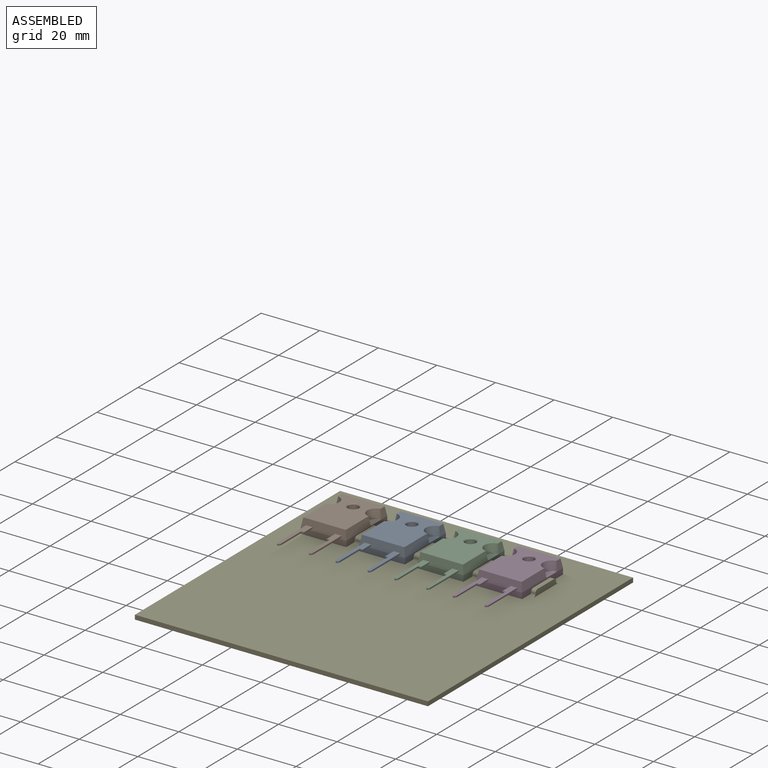
[diagram: assembled view]
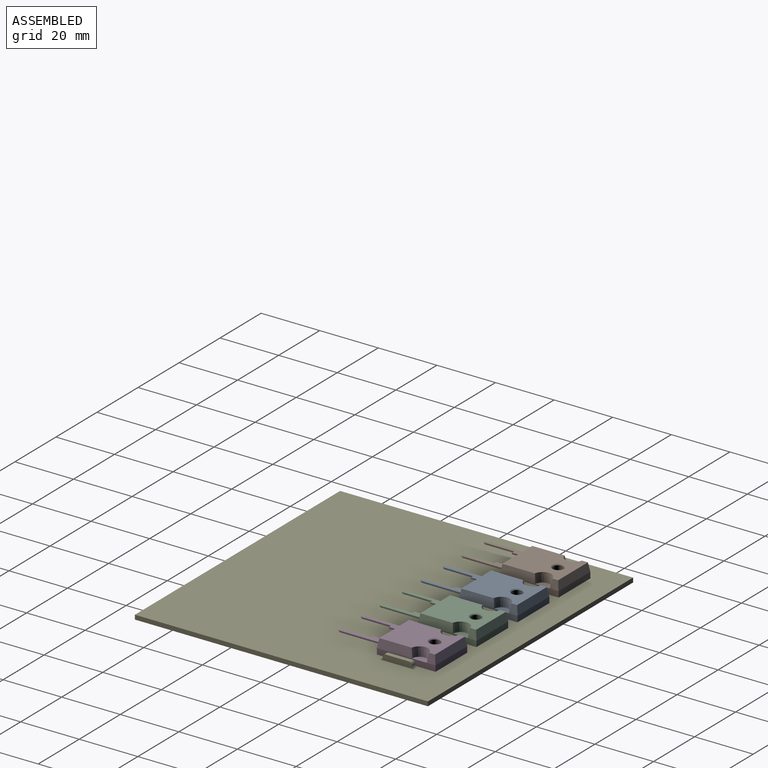
[diagram: assembled view, second angle]
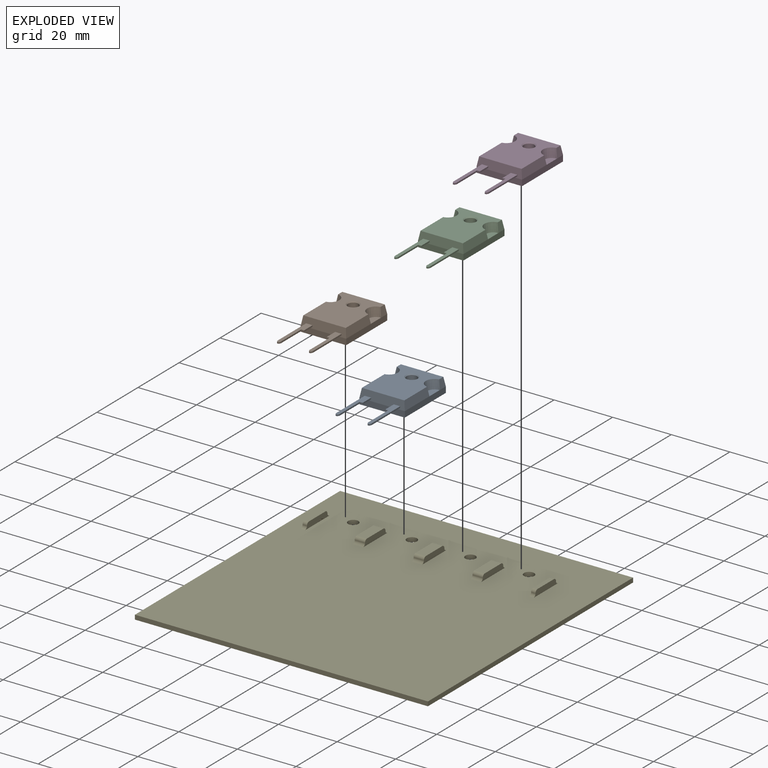
[diagram: exploded view]
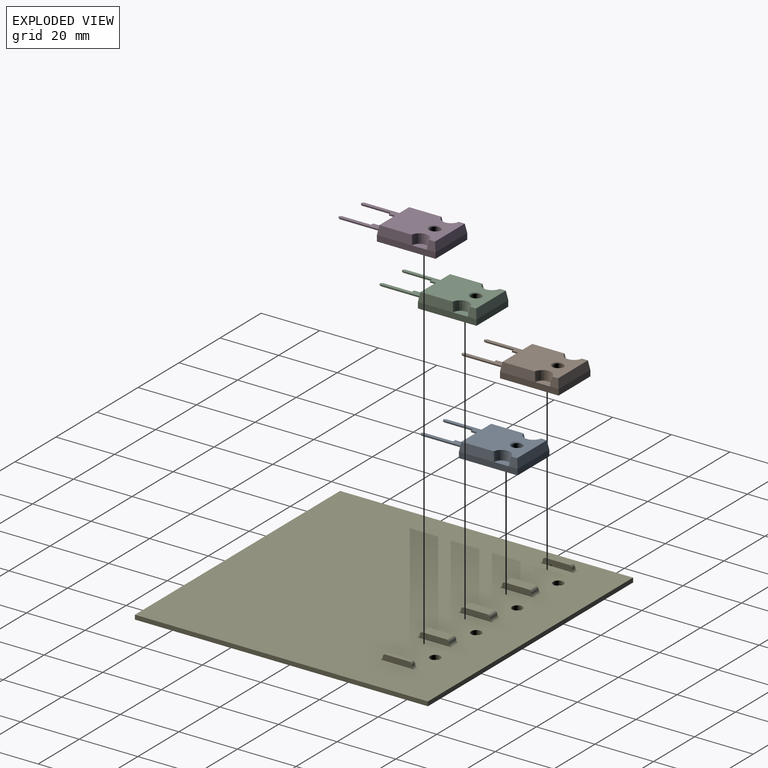
[diagram: exploded view, second angle]
ASSEMBLY  parts=5 mates=4
PART A: 36 faces, bbox 15.5x34.5x5 mm
  f0: plane 4.17x0.5mm, normal (1,0,0), area 2.1mm2, adj f3,f4,f23,f31
  f1: plane 14.06x0.5mm, normal (-1,0,0), area 7mm2, adj f3,f4,f23,f34
  f2: plane 0.5x0.5mm, normal (0,-1,0), area 0.3mm2, adj f3,f4,f33,f34
  f3: plane 14.58x2.2mm, normal (0,0,-1), area 21.4mm2, adj f0,f1,f2,f23,f31,f32,f33,f34
  f4: plane 14.67x2.2mm, normal (0,0,1), area 21.6mm2, adj f0,f1,f2,f23,f31,f32,f33,f34
  f5: plane 4.17x0.5mm, normal (-1,0,0), area 2.1mm2, adj f8,f16,f23,f27
  f6: plane 14.06x0.5mm, normal (1,0,0), area 7mm2, adj f8,f16,f23,f30
  f7: plane 0.5x0.5mm, normal (0,-1,0), area 0.3mm2, adj f8,f16,f28,f30
  f8: plane 14.67x2.2mm, normal (0,0,1), area 21.6mm2, adj f5,f6,f7,f23,f27,f28,f29,f30
  f9: plane 20x2mm, normal (1,0,0), area 40mm2, adj f11,f12,f15,f18,f24,f25
  f10: plane 19x14.5mm, normal (0,0,1), area 239.3mm2, adj f19,f20,f21,f22,f23,f24,f25,f26
  f11: plane 15.5x2mm, normal (0,-1,0), area 31mm2, adj f9,f13,f15,f23
  f12: plane 15.5x2mm, normal (0,1,0), area 31mm2, adj f9,f13,f15,f22
  f13: plane 20x2mm, normal (-1,0,0), area 40mm2, adj f11,f12,f15,f17,f20,f21
  f14: cylinder r=1.8mm len=4.7mm, axis (0,0,-1), area 53.2mm2, adj f15,f35
  f15: plane 20x15.5mm, normal (0,0,-1), area 299.8mm2, adj f9,f11,f12,f13,f14
  f16: plane 14.58x2.2mm, normal (0,0,-1), area 21.4mm2, adj f5,f6,f7,f23,f27,f28,f29,f30
  f17: plane 5x2.5mm, normal (0,0,1), area 9.8mm2, adj f13,f19
  f18: plane 5x2.5mm, normal (0,0,1), area 9.8mm2, adj f9,f26
  f19: cone r=3mm half-angle=9.5deg, axis (0,0,1), area 24.8mm2, adj f10,f17,f20,f21
  f20: plane 3x3mm, normal (-0.99,0,0.16), area 7.6mm2, adj f10,f13,f19,f22
  f21: plane 12x3mm, normal (-0.99,0,0.16), area 35mm2, adj f10,f13,f19,f23
  f22: plane 15.5x3mm, normal (0,0.99,0.16), area 45.6mm2, adj f10,f12,f20,f24
  f23: plane 15.5x3mm, normal (0,-0.99,0.16), area 43.4mm2, adj f0,f1,f3,f4,f5,f6,f8,f10
  f24: plane 3x3mm, normal (0.99,0,0.16), area 7.6mm2, adj f9,f10,f22,f26
  f25: plane 12x3mm, normal (0.99,0,0.16), area 35mm2, adj f9,f10,f23,f26
  f26: cone r=2.5mm half-angle=9.5deg, axis (0,0,1), area 24.8mm2, adj f10,f18,f24,f25
  f27: plane 1x0.5mm, normal (0,-1,0), area 0.5mm2, adj f5,f8,f16,f29
  f28: plane 0.61x0.5mm, normal (-0.87,-0.5,0), area 0.4mm2, adj f7,f8,f16,f29
  f29: plane 9.89x0.5mm, normal (-1,0,0), area 4.9mm2, adj f8,f16,f27,f28
  f30: plane 0.61x0.5mm, normal (0.87,-0.5,0), area 0.4mm2, adj f6,f7,f8,f16
  f31: plane 1x0.5mm, normal (0,-1,0), area 0.5mm2, adj f0,f3,f4,f32
  f32: plane 9.89x0.5mm, normal (1,0,0), area 4.9mm2, adj f3,f4,f31,f33
  f33: plane 0.61x0.5mm, normal (0.87,-0.5,0), area 0.4mm2, adj f2,f3,f4,f32
  f34: plane 0.61x0.5mm, normal (-0.87,-0.5,0), area 0.4mm2, adj f1,f2,f3,f4
  f35: cone r=1.8mm half-angle=45deg, axis (0,0,1), area 5.2mm2, adj f10,f14
PART B: same geometry as A
PART C: same geometry as A
PART D: same geometry as A
PART E: 52 faces, bbox 100x100x3.5 mm
  f0: plane 100x100mm, normal (0,0,-1), area 9949.5mm2, adj f3,f4,f5,f6,f7,f8,f9,f10
  f1: plane 12x2mm, normal (1,0,0), area 17.4mm2, adj f2,f12,f41,f42,f43,f44,f47,f48
  f2: plane 100x100mm, normal (0,0,1), area 9799.5mm2, adj f1,f3,f4,f5,f6,f7,f8,f9
  f3: plane 100x1.5mm, normal (1,0,0), area 150mm2, adj f0,f2,f4,f9
  f4: plane 100x1.5mm, normal (0,1,0), area 150mm2, adj f0,f2,f3,f5
  f5: plane 100x1.5mm, normal (-1,0,0), area 150mm2, adj f0,f2,f4,f9
  f6: cylinder r=1.75mm len=3.5mm, axis (0,0,-1), area 16.5mm2, adj f0,f2
  f7: cylinder r=1.75mm len=3.5mm, axis (0,0,-1), area 16.5mm2, adj f0,f2
  f8: cylinder r=1.75mm len=3.5mm, axis (0,0,-1), area 16.5mm2, adj f0,f2
  f9: plane 100x1.5mm, normal (0,-1,0), area 150mm2, adj f0,f2,f3,f5
  f10: cylinder r=1.75mm len=3.5mm, axis (0,0,-1), area 16.5mm2, adj f0,f2
  f11: plane 12x2mm, normal (-1,0,0), area 17.4mm2, adj f2,f12,f41,f42,f43,f44,f47,f48
  f12: plane 8x1.5mm, normal (0,0,1), area 12mm2, adj f1,f11,f41,f43
  f13: plane 12x2mm, normal (-1,0,0), area 20mm2, adj f2,f15,f37,f38,f39,f40
  f14: plane 12x2mm, normal (1,0,0), area 20mm2, adj f2,f15,f37,f38,f39,f40
  f15: plane 8x3.5mm, normal (0,0,1), area 28mm2, adj f13,f14,f37,f39
  f16: plane 12x2mm, normal (-1,0,0), area 20mm2, adj f2,f18,f25,f26,f27,f28
  f17: plane 12x2mm, normal (1,0,0), area 20mm2, adj f2,f18,f25,f26,f27,f28
  f18: plane 8x3.5mm, normal (0,0,1), area 28mm2, adj f16,f17,f25,f27
  f19: plane 12x2mm, normal (-1,0,0), area 20mm2, adj f2,f21,f33,f34,f35,f36
  f20: plane 12x2mm, normal (1,0,0), area 20mm2, adj f2,f21,f33,f34,f35,f36
  f21: plane 8x3.5mm, normal (0,0,1), area 28mm2, adj f19,f20,f33,f35
  f22: plane 12x2mm, normal (-1,0,0), area 20mm2, adj f2,f24,f29,f30,f31,f32
  f23: plane 12x2mm, normal (1,0,0), area 20mm2, adj f2,f24,f29,f30,f31,f32
  f24: plane 8x1.5mm, normal (0,0,1), area 12mm2, adj f22,f23,f29,f31
  f25: cylinder r=1mm len=3.5mm, axis (-1,0,0), area 5.5mm2, adj f16,f17,f18,f26
  f26: cylinder r=1mm len=3.5mm, axis (1,0,0), area 5.5mm2, adj f2,f16,f17,f25
  f27: cylinder r=1mm len=3.5mm, axis (1,0,0), area 5.5mm2, adj f16,f17,f18,f28
  f28: cylinder r=1mm len=3.5mm, axis (-1,0,0), area 5.5mm2, adj f2,f16,f17,f27
  f29: cylinder r=1mm len=1.5mm, axis (-1,0,0), area 2.4mm2, adj f22,f23,f24,f30
  f30: cylinder r=1mm len=1.5mm, axis (1,0,0), area 2.4mm2, adj f2,f22,f23,f29
  f31: cylinder r=1mm len=1.5mm, axis (1,0,0), area 2.4mm2, adj f22,f23,f24,f32
  f32: cylinder r=1mm len=1.5mm, axis (-1,0,0), area 2.4mm2, adj f2,f22,f23,f31
  f33: cylinder r=1mm len=3.5mm, axis (-1,0,0), area 5.5mm2, adj f19,f20,f21,f34
  f34: cylinder r=1mm len=3.5mm, axis (1,0,0), area 5.5mm2, adj f2,f19,f20,f33
  f35: cylinder r=1mm len=3.5mm, axis (1,0,0), area 5.5mm2, adj f19,f20,f21,f36
  f36: cylinder r=1mm len=3.5mm, axis (-1,0,0), area 5.5mm2, adj f2,f19,f20,f35
  f37: cylinder r=1mm len=3.5mm, axis (-1,0,0), area 5.5mm2, adj f13,f14,f15,f38
  f38: cylinder r=1mm len=3.5mm, axis (1,0,0), area 5.5mm2, adj f2,f13,f14,f37
  f39: cylinder r=1mm len=3.5mm, axis (1,0,0), area 5.5mm2, adj f13,f14,f15,f40
  f40: cylinder r=1mm len=3.5mm, axis (-1,0,0), area 5.5mm2, adj f2,f13,f14,f39
  f41: cylinder r=1mm len=1.5mm, axis (-1,0,0), area 2.4mm2, adj f1,f11,f12,f42
  f42: cylinder r=1mm len=1.5mm, axis (1,0,0), area 2.4mm2, adj f1,f2,f11,f41
  f43: cylinder r=1mm len=1.5mm, axis (1,0,0), area 2.4mm2, adj f1,f11,f12,f44
  f44: cylinder r=1mm len=1.5mm, axis (-1,0,0), area 2.4mm2, adj f1,f2,f11,f43
  f45: plane 8x1.5mm, normal (1,0,0), area 9.4mm2, adj f0,f2,f48,f49,f50,f51
  f46: plane 8x1.5mm, normal (-1,0,0), area 9.4mm2, adj f0,f2,f48,f49,f50,f51
  f47: plane 4x1.5mm, normal (0,0,-1), area 6mm2, adj f1,f11,f48,f50
  f48: cylinder r=1mm len=1.5mm, axis (1,0,0), area 2.4mm2, adj f1,f11,f45,f46,f47,f49
  f49: cylinder r=1mm len=1.5mm, axis (1,0,0), area 2.4mm2, adj f0,f45,f46,f48
  f50: cylinder r=1mm len=1.5mm, axis (-1,0,0), area 2.4mm2, adj f1,f11,f45,f46,f47,f51
  f51: cylinder r=1mm len=1.5mm, axis (-1,0,0), area 2.4mm2, adj f0,f45,f46,f50
PLACE A t=(-15,30.5,1.5)mm
PLACE B t=(-35,30.5,1.5)mm
PLACE C t=(5,30.5,1.5)mm
PLACE D t=(25,30.5,1.5)mm
PLACE E at identity
MATE fastened D.f14 <-> E.f10  axis (0,0,-1) through (25,35,1.5)mm
MATE fastened B.f14 <-> E.f8  axis (0,0,-1) through (-35,35,1.5)mm
MATE fastened A.f14 <-> E.f7  axis (0,0,-1) through (-15,35,1.5)mm
MATE fastened C.f14 <-> E.f6  axis (0,0,-1) through (5,35,1.5)mm
